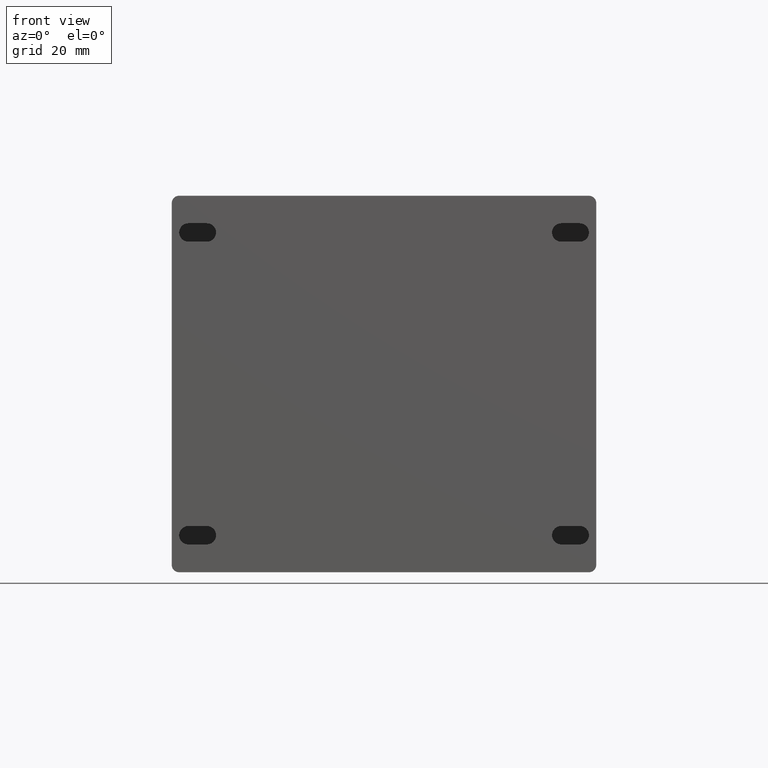
[diagram: clean part render]
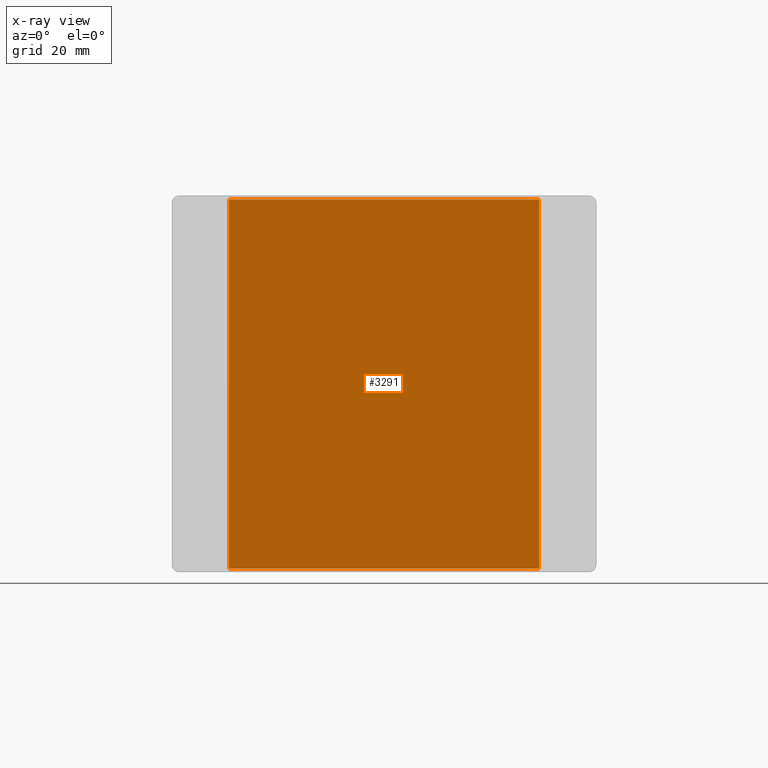
[diagram: x-ray — body ghosted, one internal face saturated and labeled with its STEP entity id]
A machine part, front view, then the same camera in x-ray: the body is ghosted and one INTERNAL B-rep face — a face not visible from any outside direction — is saturated and labeled: STEP entity #3291.
In plain terms, the highlighted planar face has unit normal (0, 1, 0).
Its self-contained STEP definition (entity closure, byte-faithful):
#252=FACE_OUTER_BOUND('',#455,.T.);
#455=EDGE_LOOP('',(#2094,#2095,#2096,#2097));
#684=LINE('',#4876,#1004);
#688=LINE('',#4884,#1008);
#691=LINE('',#4890,#1011);
#694=LINE('',#4895,#1014);
#1004=VECTOR('',#3911,10.);
#1008=VECTOR('',#3917,10.);
#1011=VECTOR('',#3922,10.);
#1014=VECTOR('',#3927,10.);
#1324=VERTEX_POINT('',#4874);
#1325=VERTEX_POINT('',#4875);
#1328=VERTEX_POINT('',#4883);
#1330=VERTEX_POINT('',#4889);
#1612=EDGE_CURVE('',#1324,#1325,#684,.T.);
#1616=EDGE_CURVE('',#1325,#1328,#688,.T.);
#1619=EDGE_CURVE('',#1328,#1330,#691,.T.);
#1622=EDGE_CURVE('',#1330,#1324,#694,.T.);
#2094=ORIENTED_EDGE('',*,*,#1612,.T.);
#2095=ORIENTED_EDGE('',*,*,#1616,.T.);
#2096=ORIENTED_EDGE('',*,*,#1619,.T.);
#2097=ORIENTED_EDGE('',*,*,#1622,.T.);
#2928=PLANE('',#3598);
#3291=ADVANCED_FACE('',(#252),#2928,.T.);
#3598=AXIS2_PLACEMENT_3D('',#4944,#3966,#3967);
#3911=DIRECTION('',(1.,0.,-6.34413156928661E-16));
#3917=DIRECTION('',(-4.88498130835069E-16,0.,-1.));
#3922=DIRECTION('',(-1.,0.,1.22256702116461E-16));
#3927=DIRECTION('',(5.32907051820075E-16,0.,1.));
#3966=DIRECTION('center_axis',(0.,1.,0.));
#3967=DIRECTION('ref_axis',(0.,0.,1.));
#4874=CARTESIAN_POINT('',(-99.4999999999999,5.,101.));
#4875=CARTESIAN_POINT('',(-15.5,5.,101.));
#4876=CARTESIAN_POINT('',(-36.5,5.,101.));
#4883=CARTESIAN_POINT('',(-15.5,5.,1.00000000000001));
#4884=CARTESIAN_POINT('',(-15.5,5.,26.));
#4889=CARTESIAN_POINT('',(-99.5,5.,1.00000000000002));
#4890=CARTESIAN_POINT('',(-78.5,5.,1.00000000000002));
#4895=CARTESIAN_POINT('',(-99.5,5.,76.));
#4944=CARTESIAN_POINT('Origin',(-57.5,5.,51.));